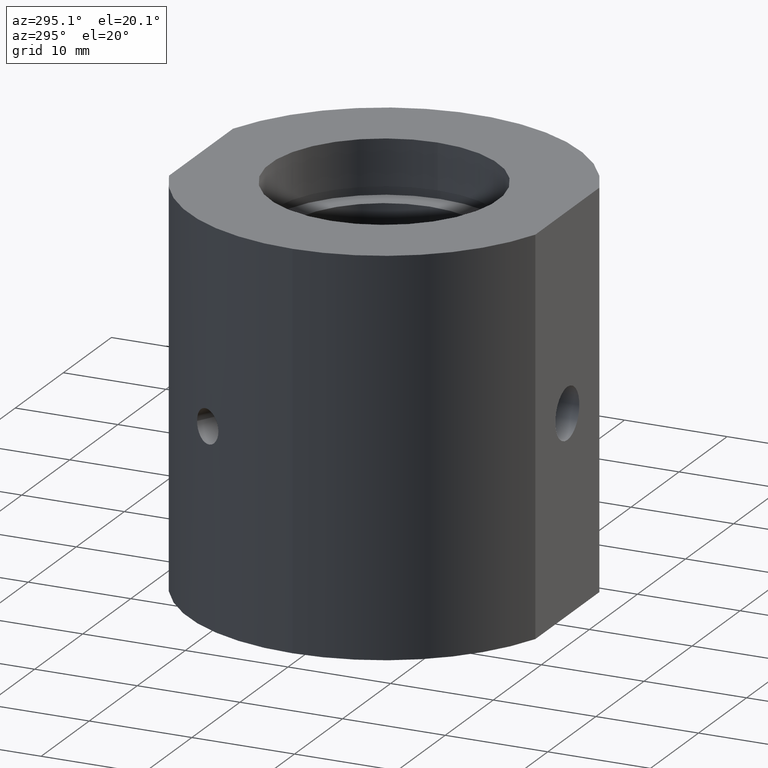
[diagram: clean part render]
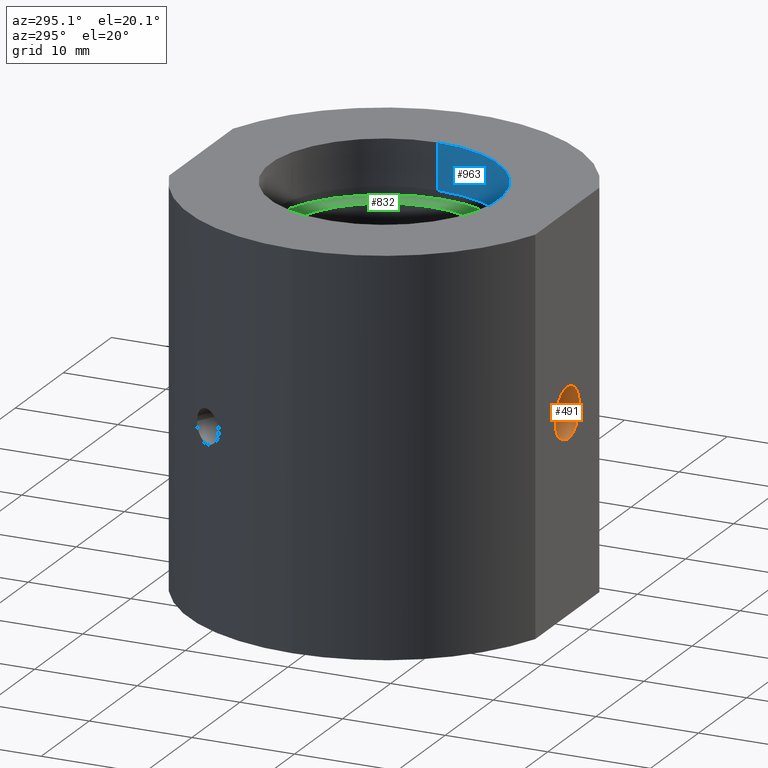
[diagram: same view with three faces highlighted in distinct colors, each labeled with its STEP entity id]
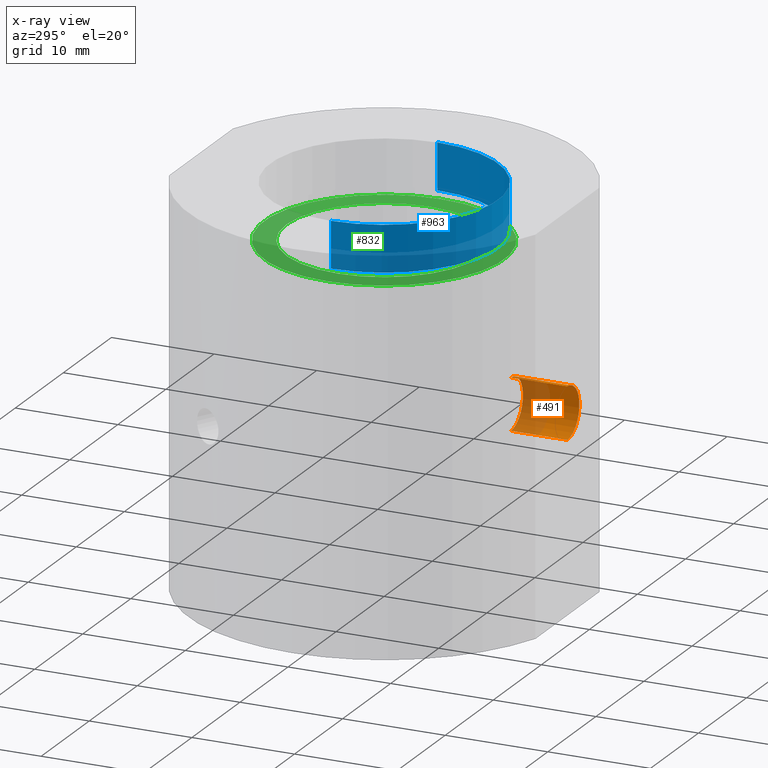
[diagram: x-ray of the same camera — body ghosted, the three highlighted faces saturated]
A machine part, auxiliary view with three faces highlighted in distinct colors.
The next image is the same camera in x-ray (body ghosted, the three faces saturated) — at least one of them is partly hidden behind the body in this view.
Their STEP definitions:

[orange] entity #491 — the highlighted cylindrical surface (edge-blend (fillet) strip) has radius 2.5 mm, axis along (-0, -1, -0).
#17 = ORIENTED_EDGE ( 'NONE', *, *, #1173, .T. ) ;
#55 = VECTOR ( 'NONE', #774, 1000.000000000000000 ) ;
#122 = CARTESIAN_POINT ( 'NONE',  ( 5.204170427930421300E-015, -17.85000000000000100, -2.499999999999999100 ) ) ;
#139 = DIRECTION ( 'NONE',  ( 0.0000000000000000000, 0.0000000000000000000, -1.000000000000000000 ) ) ;
#164 = VERTEX_POINT ( 'NONE', #273 ) ;
#181 = ORIENTED_EDGE ( 'NONE', *, *, #1319, .T. ) ;
#190 = CARTESIAN_POINT ( 'NONE',  ( 5.510332127717259900E-015, -17.85000000000000100, 2.499999999999998700 ) ) ;
#201 = LINE ( 'NONE', #1386, #1366 ) ;
#211 = ORIENTED_EDGE ( 'NONE', *, *, #571, .F. ) ;
#231 = CARTESIAN_POINT ( 'NONE',  ( 5.204170427930421300E-015, -17.85000000000000100, 0.0000000000000000000 ) ) ;
#273 = CARTESIAN_POINT ( 'NONE',  ( 5.204170427930421300E-015, -12.35000000000000100, -2.499999999999997800 ) ) ;
#274 = AXIS2_PLACEMENT_3D ( 'NONE', #378, #1257, #483 ) ;
#302 = EDGE_CURVE ( 'NONE', #1314, #852, #903, .T. ) ;
#378 = CARTESIAN_POINT ( 'NONE',  ( 5.204170427930421300E-015, -12.35000000000000100, 0.0000000000000000000 ) ) ;
#385 = AXIS2_PLACEMENT_3D ( 'NONE', #231, #447, #901 ) ;
#447 = DIRECTION ( 'NONE',  ( -0.0000000000000000000, -1.000000000000000000, -0.0000000000000000000 ) ) ;
#448 = CYLINDRICAL_SURFACE ( 'NONE', #385, 2.499999999999998700 ) ;
#483 = DIRECTION ( 'NONE',  ( 0.0000000000000000000, 0.0000000000000000000, -1.000000000000000000 ) ) ;
#491 = ADVANCED_FACE ( 'NONE', ( #1373 ), #448, .F. ) ;
#571 = EDGE_CURVE ( 'NONE', #164, #1314, #943, .T. ) ;
#665 = ORIENTED_EDGE ( 'NONE', *, *, #302, .F. ) ;
#694 = DIRECTION ( 'NONE',  ( -0.0000000000000000000, -1.000000000000000000, -0.0000000000000000000 ) ) ;
#712 = AXIS2_PLACEMENT_3D ( 'NONE', #1358, #694, #139 ) ;
#774 = DIRECTION ( 'NONE',  ( -0.0000000000000000000, -1.000000000000000000, -0.0000000000000000000 ) ) ;
#800 = CARTESIAN_POINT ( 'NONE',  ( 5.510332127717259900E-015, -17.85000000000000100, 2.499999999999999100 ) ) ;
#819 = CIRCLE ( 'NONE', #712, 2.499999999999999100 ) ;
#852 = VERTEX_POINT ( 'NONE', #800 ) ;
#901 = DIRECTION ( 'NONE',  ( 0.0000000000000000000, 0.0000000000000000000, -1.000000000000000000 ) ) ;
#903 = LINE ( 'NONE', #190, #55 ) ;
#943 = CIRCLE ( 'NONE', #274, 2.499999999999997800 ) ;
#1010 = CARTESIAN_POINT ( 'NONE',  ( 5.510332127717259900E-015, -12.35000000000000100, 2.499999999999997800 ) ) ;
#1173 = EDGE_CURVE ( 'NONE', #1341, #852, #819, .T. ) ;
#1222 = EDGE_LOOP ( 'NONE', ( #665, #211, #181, #17 ) ) ;
#1257 = DIRECTION ( 'NONE',  ( -0.0000000000000000000, -1.000000000000000000, -0.0000000000000000000 ) ) ;
#1274 = DIRECTION ( 'NONE',  ( -0.0000000000000000000, -1.000000000000000000, -0.0000000000000000000 ) ) ;
#1314 = VERTEX_POINT ( 'NONE', #1010 ) ;
#1319 = EDGE_CURVE ( 'NONE', #164, #1341, #201, .T. ) ;
#1341 = VERTEX_POINT ( 'NONE', #122 ) ;
#1358 = CARTESIAN_POINT ( 'NONE',  ( 5.204170427930421300E-015, -17.85000000000000100, 0.0000000000000000000 ) ) ;
#1366 = VECTOR ( 'NONE', #1274, 1000.000000000000000 ) ;
#1373 = FACE_OUTER_BOUND ( 'NONE', #1222, .T. ) ;
#1386 = CARTESIAN_POINT ( 'NONE',  ( 5.204170427930421300E-015, -17.85000000000000100, -2.499999999999998700 ) ) ;

[blue] entity #963 — the highlighted cylindrical surface (partial cylindrical patch) has radius 11.1 mm, axis along (-0, -0, -1).
#37 = AXIS2_PLACEMENT_3D ( 'NONE', #209, #315, #202 ) ;
#128 = EDGE_LOOP ( 'NONE', ( #967, #744, #953, #1030 ) ) ;
#202 = DIRECTION ( 'NONE',  ( -1.000000000000000000, 0.0000000000000000000, 0.0000000000000000000 ) ) ;
#209 = CARTESIAN_POINT ( 'NONE',  ( 0.0000000000000000000, 0.0000000000000000000, -31.93906810035839800 ) ) ;
#213 = EDGE_CURVE ( 'NONE', #1278, #331, #1142, .T. ) ;
#233 = DIRECTION ( 'NONE',  ( -1.224646799147350500E-016, -0.0000000000000000000, -1.000000000000000000 ) ) ;
#246 = CYLINDRICAL_SURFACE ( 'NONE', #37, 11.10000000000000100 ) ;
#262 = DIRECTION ( 'NONE',  ( -1.000000000000000000, 0.0000000000000000000, 0.0000000000000000000 ) ) ;
#315 = DIRECTION ( 'NONE',  ( -1.224646799147350500E-016, -0.0000000000000000000, -1.000000000000000000 ) ) ;
#331 = VERTEX_POINT ( 'NONE', #1300 ) ;
#333 = AXIS2_PLACEMENT_3D ( 'NONE', #909, #233, #262 ) ;
#425 = EDGE_CURVE ( 'NONE', #1443, #331, #979, .T. ) ;
#446 = CIRCLE ( 'NONE', #333, 11.10000000000000000 ) ;
#503 = DIRECTION ( 'NONE',  ( -1.000000000000000000, 0.0000000000000000000, 1.562813942321447500E-016 ) ) ;
#511 = CARTESIAN_POINT ( 'NONE',  ( 5.687145610448973200E-015, 0.0000000000000000000, 14.49999999999999800 ) ) ;
#646 = CARTESIAN_POINT ( 'NONE',  ( -11.10000000000000100, 0.0000000000000000000, -31.93906810035839800 ) ) ;
#744 = ORIENTED_EDGE ( 'NONE', *, *, #1418, .T. ) ;
#770 = FACE_OUTER_BOUND ( 'NONE', #128, .T. ) ;
#909 = CARTESIAN_POINT ( 'NONE',  ( 6.238236670065281400E-015, 0.0000000000000000000, 18.99999999999999600 ) ) ;
#944 = CARTESIAN_POINT ( 'NONE',  ( 11.10000000000000700, 1.359357947053562400E-015, 14.49999999999999600 ) ) ;
#953 = ORIENTED_EDGE ( 'NONE', *, *, #213, .T. ) ;
#963 = ADVANCED_FACE ( 'NONE', ( #770 ), #246, .F. ) ;
#967 = ORIENTED_EDGE ( 'NONE', *, *, #1195, .F. ) ;
#970 = VECTOR ( 'NONE', #1028, 1000.000000000000000 ) ;
#975 = DIRECTION ( 'NONE',  ( -1.224646799147350500E-016, -0.0000000000000000000, -1.000000000000000000 ) ) ;
#979 = LINE ( 'NONE', #646, #1130 ) ;
#1028 = DIRECTION ( 'NONE',  ( -1.224646799147350500E-016, -0.0000000000000000000, -1.000000000000000000 ) ) ;
#1030 = ORIENTED_EDGE ( 'NONE', *, *, #425, .F. ) ;
#1113 = CARTESIAN_POINT ( 'NONE',  ( 11.10000000000000100, 1.359357947053562400E-015, -31.93906810035839800 ) ) ;
#1130 = VECTOR ( 'NONE', #975, 1000.000000000000000 ) ;
#1141 = CARTESIAN_POINT ( 'NONE',  ( -11.09999999999999400, 0.0000000000000000000, 18.99999999999999600 ) ) ;
#1142 = CIRCLE ( 'NONE', #1204, 11.10000000000000100 ) ;
#1163 = LINE ( 'NONE', #1113, #970 ) ;
#1195 = EDGE_CURVE ( 'NONE', #1338, #1443, #446, .T. ) ;
#1204 = AXIS2_PLACEMENT_3D ( 'NONE', #511, #1286, #503 ) ;
#1278 = VERTEX_POINT ( 'NONE', #944 ) ;
#1286 = DIRECTION ( 'NONE',  ( -1.224646799147350500E-016, -0.0000000000000000000, -1.000000000000000000 ) ) ;
#1300 = CARTESIAN_POINT ( 'NONE',  ( -11.09999999999999800, 0.0000000000000000000, 14.50000000000000000 ) ) ;
#1338 = VERTEX_POINT ( 'NONE', #1349 ) ;
#1349 = CARTESIAN_POINT ( 'NONE',  ( 11.10000000000000700, 1.359357947053562400E-015, 18.99999999999999600 ) ) ;
#1418 = EDGE_CURVE ( 'NONE', #1338, #1278, #1163, .T. ) ;
#1443 = VERTEX_POINT ( 'NONE', #1141 ) ;

[green] entity #832 — the highlighted planar face has unit normal (-0, 0, -1).
#143 = EDGE_LOOP ( 'NONE', ( #824, #1275 ) ) ;
#176 = FACE_BOUND ( 'NONE', #1315, .T. ) ;
#267 = CIRCLE ( 'NONE', #1430, 11.69999999999999900 ) ;
#313 = CIRCLE ( 'NONE', #1247, 9.524999999999995000 ) ;
#379 = DIRECTION ( 'NONE',  ( -1.224646799147350500E-016, -0.0000000000000000000, -1.000000000000000000 ) ) ;
#388 = CARTESIAN_POINT ( 'NONE',  ( -9.524999999999989700, 0.0000000000000000000, 13.50000000000000000 ) ) ;
#390 = CARTESIAN_POINT ( 'NONE',  ( 9.525000000000000400, 1.166476076187853200E-015, 13.49999999999999600 ) ) ;
#429 = VERTEX_POINT ( 'NONE', #548 ) ;
#442 = CARTESIAN_POINT ( 'NONE',  ( 5.564680930534238900E-015, 0.0000000000000000000, 13.49999999999999800 ) ) ;
#478 = DIRECTION ( 'NONE',  ( -1.000000000000000000, 0.0000000000000000000, 1.224646799147350500E-016 ) ) ;
#479 = EDGE_CURVE ( 'NONE', #929, #598, #313, .T. ) ;
#523 = PLANE ( 'NONE',  #778 ) ;
#535 = ORIENTED_EDGE ( 'NONE', *, *, #479, .T. ) ;
#548 = CARTESIAN_POINT ( 'NONE',  ( 11.70000000000000500, 1.432836755002403100E-015, 13.49999999999999600 ) ) ;
#555 = DIRECTION ( 'NONE',  ( -1.224646799147350500E-016, -0.0000000000000000000, -1.000000000000000000 ) ) ;
#598 = VERTEX_POINT ( 'NONE', #388 ) ;
#644 = ORIENTED_EDGE ( 'NONE', *, *, #1440, .T. ) ;
#695 = DIRECTION ( 'NONE',  ( -1.224646799147350500E-016, 0.0000000000000000000, -1.000000000000000000 ) ) ;
#760 = CARTESIAN_POINT ( 'NONE',  ( 5.564680930534238900E-015, 0.0000000000000000000, 13.49999999999999800 ) ) ;
#778 = AXIS2_PLACEMENT_3D ( 'NONE', #1361, #695, #478 ) ;
#801 = FACE_OUTER_BOUND ( 'NONE', #143, .T. ) ;
#822 = DIRECTION ( 'NONE',  ( -1.000000000000000000, 0.0000000000000000000, 1.821231995776176500E-016 ) ) ;
#824 = ORIENTED_EDGE ( 'NONE', *, *, #1240, .F. ) ;
#831 = CIRCLE ( 'NONE', #1310, 9.524999999999995000 ) ;
#832 = ADVANCED_FACE ( 'NONE', ( #801, #176 ), #523, .F. ) ;
#836 = DIRECTION ( 'NONE',  ( -1.000000000000000000, 0.0000000000000000000, 1.482669637587014800E-016 ) ) ;
#918 = DIRECTION ( 'NONE',  ( -1.224646799147350500E-016, -0.0000000000000000000, -1.000000000000000000 ) ) ;
#929 = VERTEX_POINT ( 'NONE', #390 ) ;
#950 = EDGE_CURVE ( 'NONE', #429, #1340, #1061, .T. ) ;
#960 = AXIS2_PLACEMENT_3D ( 'NONE', #760, #989, #1312 ) ;
#989 = DIRECTION ( 'NONE',  ( -1.224646799147350500E-016, -0.0000000000000000000, -1.000000000000000000 ) ) ;
#1001 = DIRECTION ( 'NONE',  ( -1.000000000000000000, 0.0000000000000000000, 1.821231995776176500E-016 ) ) ;
#1002 = CARTESIAN_POINT ( 'NONE',  ( -11.69999999999999400, 0.0000000000000000000, 13.50000000000000000 ) ) ;
#1027 = CARTESIAN_POINT ( 'NONE',  ( 5.564680930534238900E-015, 0.0000000000000000000, 13.49999999999999800 ) ) ;
#1061 = CIRCLE ( 'NONE', #960, 11.69999999999999900 ) ;
#1144 = CARTESIAN_POINT ( 'NONE',  ( 5.564680930534238900E-015, 0.0000000000000000000, 13.49999999999999800 ) ) ;
#1240 = EDGE_CURVE ( 'NONE', #1340, #429, #267, .T. ) ;
#1247 = AXIS2_PLACEMENT_3D ( 'NONE', #442, #555, #1001 ) ;
#1275 = ORIENTED_EDGE ( 'NONE', *, *, #950, .F. ) ;
#1310 = AXIS2_PLACEMENT_3D ( 'NONE', #1027, #918, #822 ) ;
#1312 = DIRECTION ( 'NONE',  ( -1.000000000000000000, 0.0000000000000000000, 1.482669637587014800E-016 ) ) ;
#1315 = EDGE_LOOP ( 'NONE', ( #644, #535 ) ) ;
#1340 = VERTEX_POINT ( 'NONE', #1002 ) ;
#1361 = CARTESIAN_POINT ( 'NONE',  ( 11.70000000000000500, 0.0000000000000000000, 13.49999999999999800 ) ) ;
#1430 = AXIS2_PLACEMENT_3D ( 'NONE', #1144, #379, #836 ) ;
#1440 = EDGE_CURVE ( 'NONE', #598, #929, #831, .T. ) ;